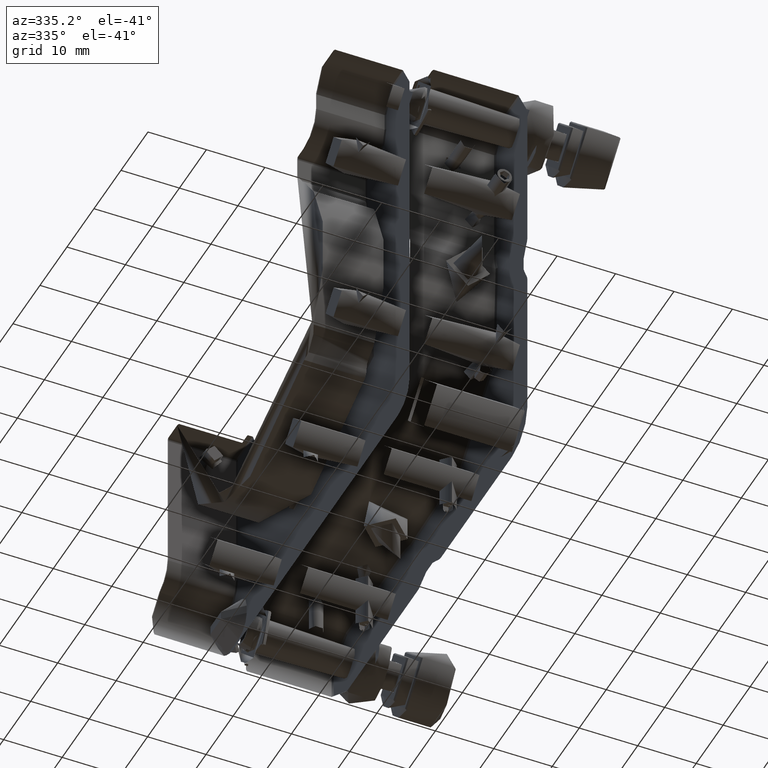
[diagram: clean part render]
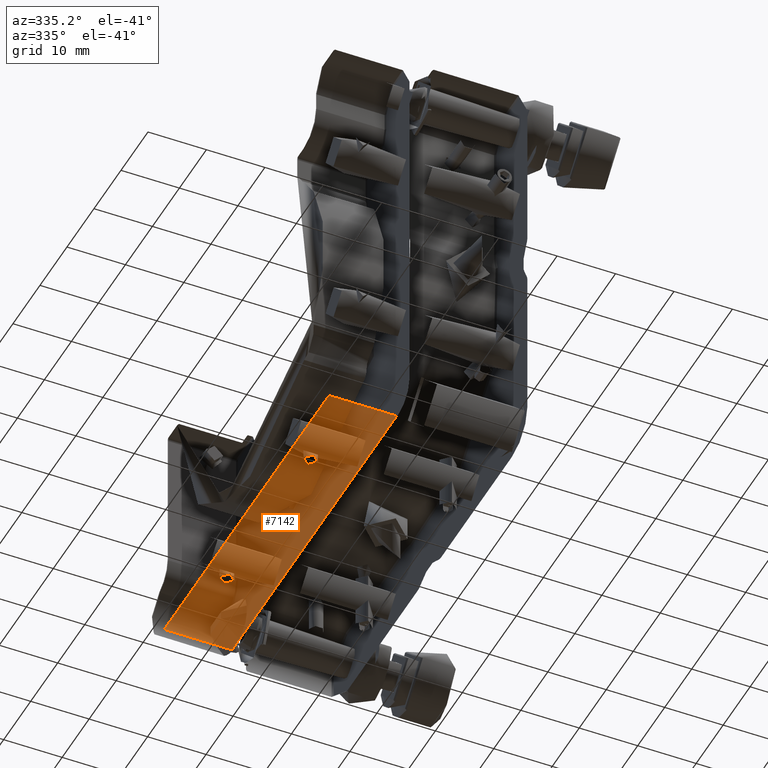
[diagram: same view with one face highlighted and labeled with its STEP entity id]
A machine part, auxiliary view. The second image highlights one B-rep face of the part: STEP entity #7142.
In plain terms, the highlighted planar face has unit normal (0, -0, 1).
Its self-contained STEP definition (entity closure, byte-faithful):
#316 = CARTESIAN_POINT ( 'NONE',  ( -5.170900697152758241, -1.317071376953201201, 17.00000000000003908 ) ) ;
#677 = VERTEX_POINT ( 'NONE', #11897 ) ;
#693 = CIRCLE ( 'NONE', #12488, 1.249999999999994227 ) ;
#929 = FACE_BOUND ( 'NONE', #13055, .T. ) ;
#973 = CARTESIAN_POINT ( 'NONE',  ( -12.97090069715273586, 14.18292862304679147, 17.00000000000003553 ) ) ;
#1946 = CARTESIAN_POINT ( 'NONE',  ( -4.970900697152736747, 33.68292862304680568, 17.00000000000004263 ) ) ;
#2075 = FACE_BOUND ( 'NONE', #7371, .T. ) ;
#2200 = ORIENTED_EDGE ( 'NONE', *, *, #12142, .T. ) ;
#2263 = CARTESIAN_POINT ( 'NONE',  ( -4.970900697152736747, 29.18292862304679502, 17.00000000000004263 ) ) ;
#3000 = EDGE_CURVE ( 'NONE', #677, #11718, #12188, .T. ) ;
#3254 = EDGE_CURVE ( 'NONE', #677, #4681, #3710, .T. ) ;
#3345 = DIRECTION ( 'NONE',  ( -0.000000000000000000, -1.982541115402065110E-16, 1.000000000000000000 ) ) ;
#3710 = LINE ( 'NONE', #316, #6333 ) ;
#3862 = DIRECTION ( 'NONE',  ( -1.000000000000000000, -0.000000000000000000, -0.000000000000000000 ) ) ;
#4223 = VECTOR ( 'NONE', #3862, 1000.000000000000000 ) ;
#4225 = EDGE_CURVE ( 'NONE', #11500, #11500, #11885, .T. ) ;
#4241 = DIRECTION ( 'NONE',  ( 0.000000000000000000, 1.000000000000000000, 0.000000000000000000 ) ) ;
#4585 = EDGE_CURVE ( 'NONE', #11718, #7637, #11412, .T. ) ;
#4681 = VERTEX_POINT ( 'NONE', #6525 ) ;
#4819 = VERTEX_POINT ( 'NONE', #12351 ) ;
#5350 = DIRECTION ( 'NONE',  ( 0.000000000000000000, -1.982541115402065110E-16, 1.000000000000000000 ) ) ;
#5395 = DIRECTION ( 'NONE',  ( -0.000000000000000000, -1.982541115402065110E-16, 1.000000000000000000 ) ) ;
#5910 = ORIENTED_EDGE ( 'NONE', *, *, #13463, .F. ) ;
#5994 = CARTESIAN_POINT ( 'NONE',  ( -12.97090069715273586, 15.43292862304678614, 17.00000000000003553 ) ) ;
#6226 = DIRECTION ( 'NONE',  ( 9.912705577010325549E-17, -1.000000000000000000, -9.912705577010925823E-17 ) ) ;
#6333 = VECTOR ( 'NONE', #6226, 1000.000000000000000 ) ;
#6375 = DIRECTION ( 'NONE',  ( 0.000000000000000000, -1.000000000000000000, -1.982541115402065110E-16 ) ) ;
#6525 = CARTESIAN_POINT ( 'NONE',  ( -5.170900697152258196, -31.81707137695320142, 16.99999999999639400 ) ) ;
#6773 = ORIENTED_EDGE ( 'NONE', *, *, #4225, .F. ) ;
#7142 = ADVANCED_FACE ( 'NONE', ( #12972, #929, #2075 ), #7462, .T. ) ;
#7371 = EDGE_LOOP ( 'NONE', ( #6773 ) ) ;
#7462 = PLANE ( 'NONE',  #12187 ) ;
#7637 = VERTEX_POINT ( 'NONE', #13719 ) ;
#7840 = DIRECTION ( 'NONE',  ( 0.000000000000000000, 1.000000000000000000, 0.000000000000000000 ) ) ;
#7966 = LINE ( 'NONE', #10269, #8077 ) ;
#8077 = VECTOR ( 'NONE', #8246, 1000.000000000000000 ) ;
#8219 = DIRECTION ( 'NONE',  ( 0.000000000000000000, -1.000000000000000000, -1.982541115402065110E-16 ) ) ;
#8231 = ORIENTED_EDGE ( 'NONE', *, *, #4585, .T. ) ;
#8246 = DIRECTION ( 'NONE',  ( 1.000000000000000000, -0.000000000000000000, -0.000000000000000000 ) ) ;
#8488 = CARTESIAN_POINT ( 'NONE',  ( -16.77090069715272591, 29.18292862304679502, 17.00000000000004263 ) ) ;
#9300 = CARTESIAN_POINT ( 'NONE',  ( -16.77090069715272591, 33.68292862304680568, 17.00000000000004263 ) ) ;
#10269 = CARTESIAN_POINT ( 'NONE',  ( -4.970900697152736747, -31.81707137695319432, 17.00000000000002842 ) ) ;
#11412 = LINE ( 'NONE', #9300, #11461 ) ;
#11461 = VECTOR ( 'NONE', #8219, 1000.000000000000000 ) ;
#11500 = VERTEX_POINT ( 'NONE', #5994 ) ;
#11718 = VERTEX_POINT ( 'NONE', #8488 ) ;
#11885 = CIRCLE ( 'NONE', #12105, 1.249999999999994227 ) ;
#11897 = CARTESIAN_POINT ( 'NONE',  ( -5.170900697159699355, 29.18292862304680924, 16.99999999998323119 ) ) ;
#11902 = EDGE_LOOP ( 'NONE', ( #13442, #12313, #8231, #2200 ) ) ;
#12105 = AXIS2_PLACEMENT_3D ( 'NONE', #973, #5395, #4241 ) ;
#12142 = EDGE_CURVE ( 'NONE', #7637, #4681, #7966, .T. ) ;
#12187 = AXIS2_PLACEMENT_3D ( 'NONE', #1946, #5350, #6375 ) ;
#12188 = LINE ( 'NONE', #2263, #4223 ) ;
#12313 = ORIENTED_EDGE ( 'NONE', *, *, #3000, .T. ) ;
#12351 = CARTESIAN_POINT ( 'NONE',  ( -12.97090069715273586, -15.56707137695321386, 17.00000000000003553 ) ) ;
#12488 = AXIS2_PLACEMENT_3D ( 'NONE', #13431, #3345, #7840 ) ;
#12972 = FACE_OUTER_BOUND ( 'NONE', #11902, .T. ) ;
#13055 = EDGE_LOOP ( 'NONE', ( #5910 ) ) ;
#13431 = CARTESIAN_POINT ( 'NONE',  ( -12.97090069715273586, -16.81707137695320853, 17.00000000000003553 ) ) ;
#13442 = ORIENTED_EDGE ( 'NONE', *, *, #3254, .F. ) ;
#13463 = EDGE_CURVE ( 'NONE', #4819, #4819, #693, .T. ) ;
#13719 = CARTESIAN_POINT ( 'NONE',  ( -16.77090069717068133, -31.81707137695319432, 17.00000000001320899 ) ) ;